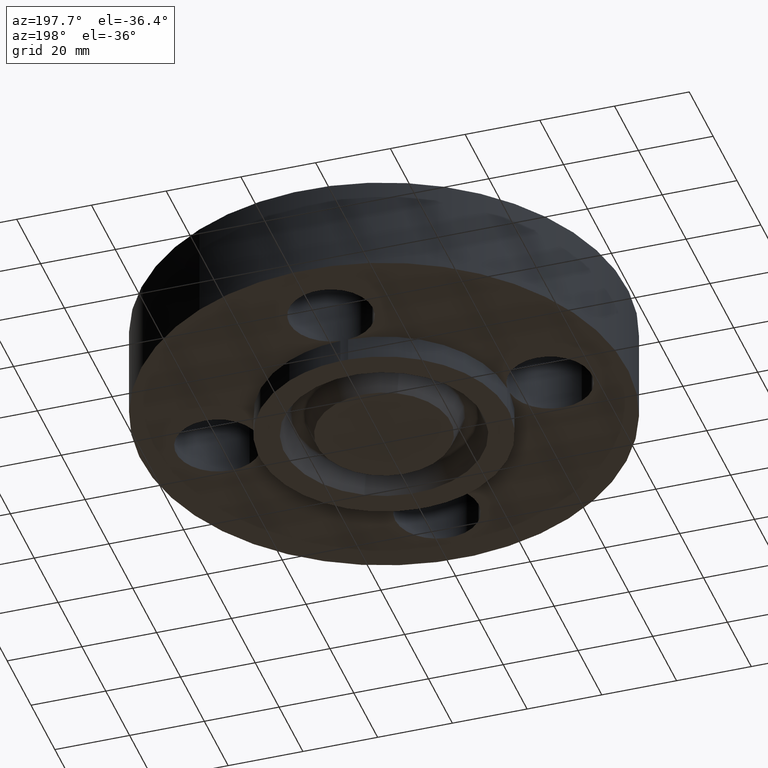
[diagram: clean part render]
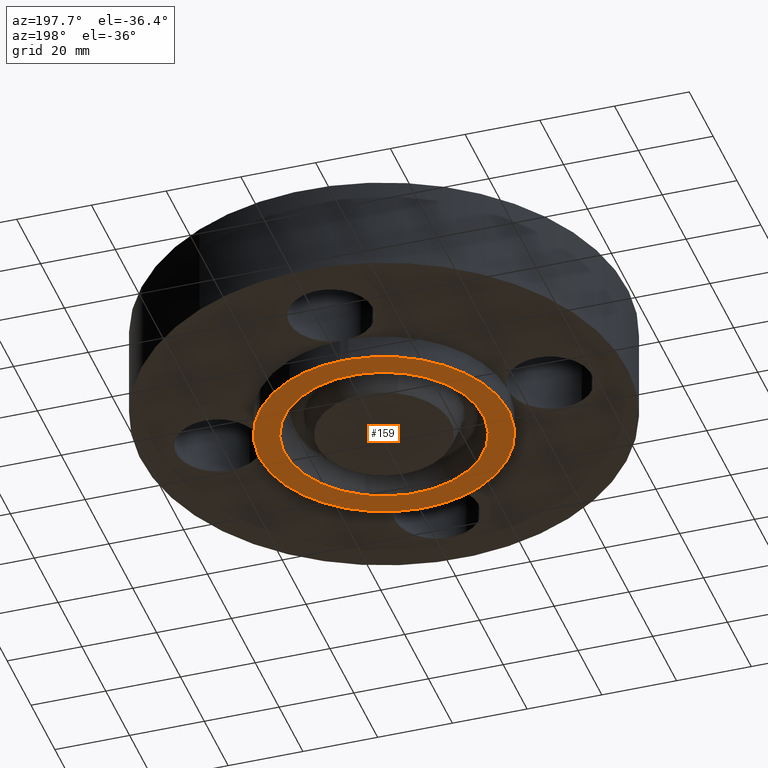
[diagram: same view with one face highlighted and labeled with its STEP entity id]
A machine part, auxiliary view. The second image highlights one B-rep face of the part: STEP entity #159.
In plain terms, the highlighted planar face has unit normal (0, 0, -1).
Its self-contained STEP definition (entity closure, byte-faithful):
#38=AXIS2_PLACEMENT_3D('Plane Axis2P3D',#35,#36,#37) ;
#61=AXIS2_PLACEMENT_3D('Circle Axis2P3D',#59,#60,$) ;
#70=AXIS2_PLACEMENT_3D('Circle Axis2P3D',#68,#69,$) ;
#77=AXIS2_PLACEMENT_3D('Circle Axis2P3D',#75,#76,$) ;
#84=AXIS2_PLACEMENT_3D('Circle Axis2P3D',#82,#83,$) ;
#91=AXIS2_PLACEMENT_3D('Circle Axis2P3D',#89,#90,$) ;
#98=AXIS2_PLACEMENT_3D('Circle Axis2P3D',#96,#97,$) ;
#105=AXIS2_PLACEMENT_3D('Circle Axis2P3D',#103,#104,$) ;
#112=AXIS2_PLACEMENT_3D('Circle Axis2P3D',#110,#111,$) ;
#119=AXIS2_PLACEMENT_3D('Circle Axis2P3D',#117,#118,$) ;
#126=AXIS2_PLACEMENT_3D('Circle Axis2P3D',#124,#125,$) ;
#143=AXIS2_PLACEMENT_3D('Circle Axis2P3D',#141,#142,$) ;
#152=AXIS2_PLACEMENT_3D('Circle Axis2P3D',#150,#151,$) ;
#35=CARTESIAN_POINT('Axis2P3D Location',(0.,0.,-0.250000000001)) ;
#59=CARTESIAN_POINT('Axis2P3D Location',(0.,0.,-0.250000000001)) ;
#63=CARTESIAN_POINT('Vertex',(1.31187321429,-0.0405576089,-0.250000000001)) ;
#65=CARTESIAN_POINT('Vertex',(0.0405576089,-1.31187321429,-0.250000000001)) ;
#68=CARTESIAN_POINT('Axis2P3D Location',(1.22386790116E-016,-1.75000000001,-0.250000000001)) ;
#72=CARTESIAN_POINT('Vertex',(-0.0405576089,-1.31187321429,-0.250000000001)) ;
#75=CARTESIAN_POINT('Axis2P3D Location',(0.,0.,-0.250000000001)) ;
#79=CARTESIAN_POINT('Vertex',(-0.629246019421,-1.15182711249,-0.250000000001)) ;
#82=CARTESIAN_POINT('Axis2P3D Location',(0.,0.,-0.250000000001)) ;
#86=CARTESIAN_POINT('Vertex',(-1.31187321429,-0.0405576089,-0.250000000001)) ;
#89=CARTESIAN_POINT('Axis2P3D Location',(-1.75000000001,-2.79741234551E-016,-0.250000000001)) ;
#93=CARTESIAN_POINT('Vertex',(-1.31187321429,0.0405576089,-0.250000000001)) ;
#96=CARTESIAN_POINT('Axis2P3D Location',(0.,0.,-0.250000000001)) ;
#100=CARTESIAN_POINT('Vertex',(-0.0405576089,1.31187321429,-0.250000000001)) ;
#103=CARTESIAN_POINT('Axis2P3D Location',(5.24514814784E-017,1.75000000001,-0.250000000001)) ;
#107=CARTESIAN_POINT('Vertex',(0.0405576089,1.31187321429,-0.250000000001)) ;
#110=CARTESIAN_POINT('Axis2P3D Location',(0.,0.,-0.250000000001)) ;
#114=CARTESIAN_POINT('Vertex',(0.629246019421,1.15182711249,-0.250000000001)) ;
#117=CARTESIAN_POINT('Axis2P3D Location',(0.,0.,-0.250000000001)) ;
#121=CARTESIAN_POINT('Vertex',(1.31187321429,0.0405576089,-0.250000000001)) ;
#124=CARTESIAN_POINT('Axis2P3D Location',(1.75000000001,-2.62257407392E-016,-0.250000000001)) ;
#141=CARTESIAN_POINT('Axis2P3D Location',(0.,-1.39870617276E-016,-0.250000000001)) ;
#145=CARTESIAN_POINT('Vertex',(0.501958538921,-0.918828942303,-0.250000000001)) ;
#147=CARTESIAN_POINT('Vertex',(-0.501958538921,0.918828942303,-0.250000000001)) ;
#150=CARTESIAN_POINT('Axis2P3D Location',(0.,1.39870617276E-016,-0.250000000001)) ;
#36=DIRECTION('Axis2P3D Direction',(0.,0.,-0.0393700787402)) ;
#37=DIRECTION('Axis2P3D XDirection',(0.0393700787402,0.,0.)) ;
#60=DIRECTION('Axis2P3D Direction',(0.,0.,-0.0393700787402)) ;
#69=DIRECTION('Axis2P3D Direction',(0.,0.,-0.0393700787402)) ;
#76=DIRECTION('Axis2P3D Direction',(0.,0.,-0.0393700787402)) ;
#83=DIRECTION('Axis2P3D Direction',(0.,0.,-0.0393700787402)) ;
#90=DIRECTION('Axis2P3D Direction',(0.,0.,-0.0393700787402)) ;
#97=DIRECTION('Axis2P3D Direction',(0.,0.,-0.0393700787402)) ;
#104=DIRECTION('Axis2P3D Direction',(0.,0.,-0.0393700787402)) ;
#111=DIRECTION('Axis2P3D Direction',(0.,0.,-0.0393700787402)) ;
#118=DIRECTION('Axis2P3D Direction',(0.,0.,-0.0393700787402)) ;
#125=DIRECTION('Axis2P3D Direction',(0.,0.,-0.0393700787402)) ;
#142=DIRECTION('Axis2P3D Direction',(0.,0.,-0.0393700787402)) ;
#151=DIRECTION('Axis2P3D Direction',(0.,0.,-0.0393700787402)) ;
#130=ORIENTED_EDGE('',*,*,#67,.T.) ;
#131=ORIENTED_EDGE('',*,*,#74,.F.) ;
#132=ORIENTED_EDGE('',*,*,#81,.T.) ;
#133=ORIENTED_EDGE('',*,*,#88,.T.) ;
#134=ORIENTED_EDGE('',*,*,#95,.F.) ;
#135=ORIENTED_EDGE('',*,*,#102,.T.) ;
#136=ORIENTED_EDGE('',*,*,#109,.F.) ;
#137=ORIENTED_EDGE('',*,*,#116,.T.) ;
#138=ORIENTED_EDGE('',*,*,#123,.T.) ;
#139=ORIENTED_EDGE('',*,*,#128,.F.) ;
#156=ORIENTED_EDGE('',*,*,#149,.F.) ;
#157=ORIENTED_EDGE('',*,*,#154,.F.) ;
#158=FACE_BOUND('',#155,.T.) ;
#159=ADVANCED_FACE('PartBody',(#140,#158),#39,.T.) ;
#62=CIRCLE('generated circle',#61,1.31250000001) ;
#71=CIRCLE('generated circle',#70,0.440000000002) ;
#78=CIRCLE('generated circle',#77,1.31250000001) ;
#85=CIRCLE('generated circle',#84,1.31250000001) ;
#92=CIRCLE('generated circle',#91,0.440000000002) ;
#99=CIRCLE('generated circle',#98,1.31250000001) ;
#106=CIRCLE('generated circle',#105,0.440000000002) ;
#113=CIRCLE('generated circle',#112,1.31250000001) ;
#120=CIRCLE('generated circle',#119,1.31250000001) ;
#127=CIRCLE('generated circle',#126,0.440000000002) ;
#144=CIRCLE('generated circle',#143,1.047) ;
#153=CIRCLE('generated circle',#152,1.047) ;
#67=EDGE_CURVE('',#64,#66,#62,.T.) ;
#74=EDGE_CURVE('',#73,#66,#71,.T.) ;
#81=EDGE_CURVE('',#73,#80,#78,.T.) ;
#88=EDGE_CURVE('',#80,#87,#85,.T.) ;
#95=EDGE_CURVE('',#94,#87,#92,.T.) ;
#102=EDGE_CURVE('',#94,#101,#99,.T.) ;
#109=EDGE_CURVE('',#108,#101,#106,.T.) ;
#116=EDGE_CURVE('',#108,#115,#113,.T.) ;
#123=EDGE_CURVE('',#115,#122,#120,.T.) ;
#128=EDGE_CURVE('',#64,#122,#127,.T.) ;
#149=EDGE_CURVE('',#146,#148,#144,.T.) ;
#154=EDGE_CURVE('',#148,#146,#153,.T.) ;
#129=EDGE_LOOP('',(#130,#131,#132,#133,#134,#135,#136,#137,#138,#139)) ;
#155=EDGE_LOOP('',(#156,#157)) ;
#140=FACE_OUTER_BOUND('',#129,.T.) ;
#39=PLANE('',#38) ;
#64=VERTEX_POINT('',#63) ;
#66=VERTEX_POINT('',#65) ;
#73=VERTEX_POINT('',#72) ;
#80=VERTEX_POINT('',#79) ;
#87=VERTEX_POINT('',#86) ;
#94=VERTEX_POINT('',#93) ;
#101=VERTEX_POINT('',#100) ;
#108=VERTEX_POINT('',#107) ;
#115=VERTEX_POINT('',#114) ;
#122=VERTEX_POINT('',#121) ;
#146=VERTEX_POINT('',#145) ;
#148=VERTEX_POINT('',#147) ;